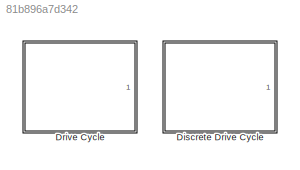
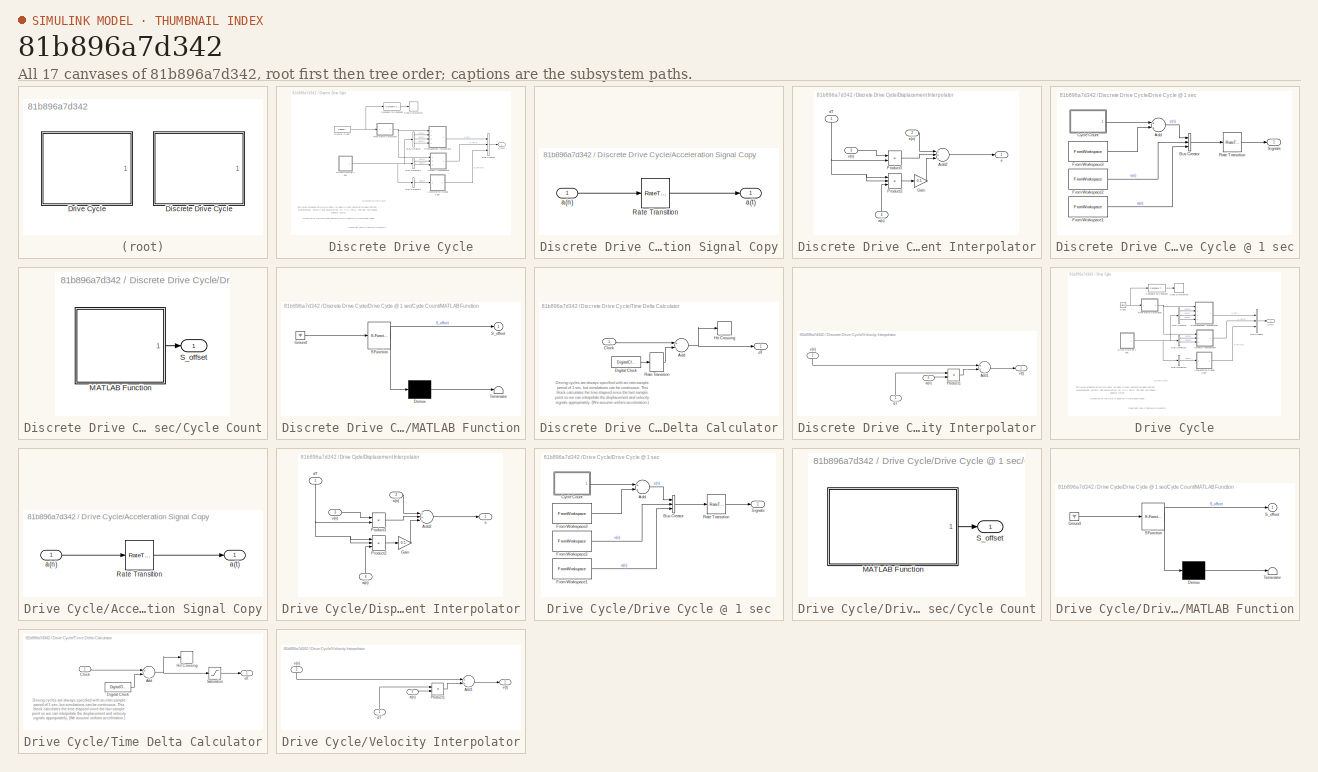
[diagram: thumbnail index - all 17 canvases of the model, root first then tree order]
MODEL slx_81b896a7d342
KIND library
CONFIG AbsTol = auto
CONFIG EnableMultiTasking = on
CONFIG FixedStep = auto
CONFIG MaxStep = auto
CONFIG MinStep = auto
CONFIG RelTol = 1e-3
CONFIG SampleTimeConstraint = Unconstrained
CONFIG Solver = ode45
CONFIG SolverName = ode45
CONFIG StartTime = 0.0
CONFIG StopTime = 10.0
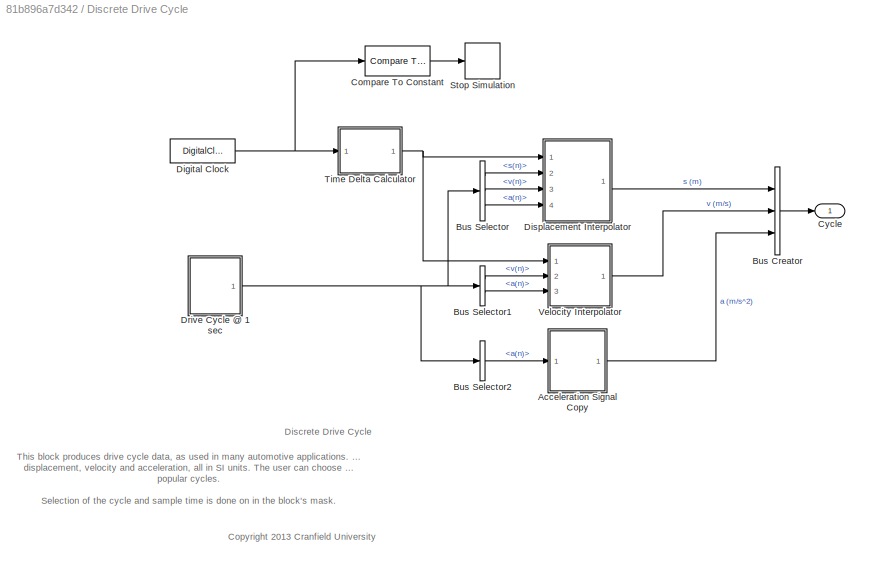
BLOCK [SubSystem] Discrete Drive Cycle
  Ports = [0, 1]
  RequestExecContextInheritance = off
BLOCK [SubSystem] Discrete Drive Cycle/Acceleration Signal Copy
  Ports = [1, 1]
  RequestExecContextInheritance = off
BLOCK [RateTransition] Discrete Drive Cycle/Acceleration Signal Copy/Rate Transition
  Integrity = off
BLOCK [Inport] Discrete Drive Cycle/Acceleration Signal Copy/a(n)
  IconDisplay = Port number
BLOCK [Outport] Discrete Drive Cycle/Acceleration Signal Copy/a(t)
  IconDisplay = Port number
BLOCK [BusCreator] Discrete Drive Cycle/Bus Creator
  DisplayOption = bar
  InheritFromInputs = on
  Inputs = 3
  Ports = [3, 1]
BLOCK [BusSelector] Discrete Drive Cycle/Bus Selector
  OutputAsBus = off
  OutputSignals = s(n),v(n),a(n)
  Ports = [1, 3]
BLOCK [BusSelector] Discrete Drive Cycle/Bus Selector1
  OutputAsBus = off
  OutputSignals = v(n),a(n)
  Ports = [1, 2]
BLOCK [BusSelector] Discrete Drive Cycle/Bus Selector2
  OutputAsBus = off
  OutputSignals = a(n)
  Ports = [1, 1]
BLOCK [Reference] Discrete Drive Cycle/Compare To Constant  REF=simulink/Logic and Bit
Operations/Compare
To Constant
  Ports = [1, 1]
  SourceBlock = simulink/Logic and Bit\nOperations/Compare\nTo Constant
  SourceProductBaseCode = SL
  SourceProductName = Simulink
  SourceType = Compare To Constant
BLOCK [Outport] Discrete Drive Cycle/Cycle
  IconDisplay = Port number
  SampleTime = SampleTime
BLOCK [DigitalClock] Discrete Drive Cycle/Digital Clock
  SampleTime = SampleTime
BLOCK [SubSystem] Discrete Drive Cycle/Displacement Interpolator
  Ports = [4, 1]
  RequestExecContextInheritance = off
BLOCK [Sum] Discrete Drive Cycle/Displacement Interpolator/Add2
  InputSameDT = off
  Inputs = +++
  OutDataTypeStr = Inherit: Inherit via internal rule
  Ports = [3, 1]
  SaturateOnIntegerOverflow = off
BLOCK [Gain] Discrete Drive Cycle/Displacement Interpolator/Gain
  Gain = 0.5
  OutDataTypeStr = Inherit: Inherit via internal rule
  ParamDataTypeStr = Inherit: Inherit via internal rule
  SaturateOnIntegerOverflow = off
BLOCK [Product] Discrete Drive Cycle/Displacement Interpolator/Product2
  InputSameDT = off
  Inputs = 3
  OutDataTypeStr = Inherit: Inherit via internal rule
  Ports = [3, 1]
  SaturateOnIntegerOverflow = off
BLOCK [Product] Discrete Drive Cycle/Displacement Interpolator/Product3
  InputSameDT = off
  OutDataTypeStr = Inherit: Inherit via internal rule
  Ports = [2, 1]
  SaturateOnIntegerOverflow = off
BLOCK [Inport] Discrete Drive Cycle/Displacement Interpolator/a(n)
  IconDisplay = Port number
  Port = 4
BLOCK [Inport] Discrete Drive Cycle/Displacement Interpolator/dT
  IconDisplay = Port number
BLOCK [Outport] Discrete Drive Cycle/Displacement Interpolator/s
  IconDisplay = Port number
BLOCK [Inport] Discrete Drive Cycle/Displacement Interpolator/s(n)
  IconDisplay = Port number
  Port = 2
BLOCK [Inport] Discrete Drive Cycle/Displacement Interpolator/v(n)
  IconDisplay = Port number
  Port = 3
BLOCK [SubSystem] Discrete Drive Cycle/Drive Cycle @ 1 sec
  Ports = [0, 1]
  RequestExecContextInheritance = off
BLOCK [Sum] Discrete Drive Cycle/Drive Cycle @ 1 sec/Add
  InputSameDT = off
  OutDataTypeStr = Inherit: Inherit via internal rule
  Ports = [2, 1]
  SaturateOnIntegerOverflow = off
BLOCK [BusCreator] Discrete Drive Cycle/Drive Cycle @ 1 sec/Bus Creator
  DisplayOption = bar
  InheritFromInputs = on
  Inputs = 3
  Ports = [3, 1]
BLOCK [SubSystem] Discrete Drive Cycle/Drive Cycle @ 1 sec/Cycle Count
  Ports = [0, 1]
  RequestExecContextInheritance = off
BLOCK [SubSystem] Discrete Drive Cycle/Drive Cycle @ 1 sec/Cycle Count/MATLAB Function
  ErrorFcn = Stateflow.Translate.translate
  PermitHierarchicalResolution = ExplicitOnly
  Ports = [0, 1]
  RequestExecContextInheritance = off
  SFBlockType = MATLAB Function
  TreatAsAtomicUnit = on
BLOCK [Demux] Discrete Drive Cycle/Drive Cycle @ 1 sec/Cycle Count/MATLAB Function/ Demux 
  Outputs = 1
  Ports = [1, 1]
BLOCK [Ground] Discrete Drive Cycle/Drive Cycle @ 1 sec/Cycle Count/MATLAB Function/ Ground 
BLOCK [S-Function] Discrete Drive Cycle/Drive Cycle @ 1 sec/Cycle Count/MATLAB Function/ SFunction 
  EnableBusSupport = off
  FunctionName = sf_sfun
  Parameters = S_CYCLE,T_CYCLE
  PortCounts = [1 2]
  Ports = [1, 2]
  SFcnIsStateOwnerBlock = off
  SFunctionDeploymentMode = off
  Tag = Stateflow S-Function drivecyclelib 1
BLOCK [Terminator] Discrete Drive Cycle/Drive Cycle @ 1 sec/Cycle Count/MATLAB Function/ Terminator 
BLOCK [Outport] Discrete Drive Cycle/Drive Cycle @ 1 sec/Cycle Count/MATLAB Function/S_offset
  IconDisplay = Port number
BLOCK [Outport] Discrete Drive Cycle/Drive Cycle @ 1 sec/Cycle Count/S_offset
  IconDisplay = Port number
BLOCK [FromWorkspace] Discrete Drive Cycle/Drive Cycle @ 1 sec/From Workspace1
  Interpolate = off
  OutputAfterFinalValue = Cyclic repetition
  SampleTime = 1
  VariableName = Acc
  ZeroCross = on
BLOCK [FromWorkspace] Discrete Drive Cycle/Drive Cycle @ 1 sec/From Workspace2
  Interpolate = off
  OutputAfterFinalValue = Cyclic repetition
  SampleTime = 1
  VariableName = Vel
  ZeroCross = on
BLOCK [FromWorkspace] Discrete Drive Cycle/Drive Cycle @ 1 sec/From Workspace3
  Interpolate = off
  OutputAfterFinalValue = Cyclic repetition
  SampleTime = 1
  VariableName = Disp
  ZeroCross = on
BLOCK [RateTransition] Discrete Drive Cycle/Drive Cycle @ 1 sec/Rate Transition
  Integrity = off
  OutPortSampleTime = SampleTime
BLOCK [Outport] Discrete Drive Cycle/Drive Cycle @ 1 sec/Signals
  IconDisplay = Port number
  SampleTime = SampleTime
BLOCK [Stop] Discrete Drive Cycle/Stop Simulation
BLOCK [SubSystem] Discrete Drive Cycle/Time Delta Calculator
  Ports = [1, 1]
  RequestExecContextInheritance = off
BLOCK [Sum] Discrete Drive Cycle/Time Delta Calculator/Add
  InputSameDT = off
  Inputs = +-
  OutDataTypeStr = Inherit: Inherit via internal rule
  Ports = [2, 1]
  SaturateOnIntegerOverflow = off
BLOCK [Inport] Discrete Drive Cycle/Time Delta Calculator/Clock
  IconDisplay = Port number
BLOCK [DigitalClock] Discrete Drive Cycle/Time Delta Calculator/Digital Clock
BLOCK [HitCross] Discrete Drive Cycle/Time Delta Calculator/Hit  Crossing
  HitCrossingOffset = 0.5
  Ports = [1]
  ShowOutputPort = off
BLOCK [RateTransition] Discrete Drive Cycle/Time Delta Calculator/Rate Transition
  Deterministic = off
  Integrity = off
  OutPortSampleTime = SampleTime
BLOCK [Outport] Discrete Drive Cycle/Time Delta Calculator/dT
  IconDisplay = Port number
BLOCK [SubSystem] Discrete Drive Cycle/Velocity Interpolator
  Ports = [3, 1]
  RequestExecContextInheritance = off
BLOCK [Sum] Discrete Drive Cycle/Velocity Interpolator/Add1
  InputSameDT = off
  OutDataTypeStr = Inherit: Inherit via internal rule
  Ports = [2, 1]
  SaturateOnIntegerOverflow = off
BLOCK [Product] Discrete Drive Cycle/Velocity Interpolator/Product1
  InputSameDT = off
  OutDataTypeStr = Inherit: Inherit via internal rule
  Ports = [2, 1]
  SaturateOnIntegerOverflow = off
BLOCK [Inport] Discrete Drive Cycle/Velocity Interpolator/a(n)
  IconDisplay = Port number
  Port = 3
BLOCK [Inport] Discrete Drive Cycle/Velocity Interpolator/dT
  IconDisplay = Port number
BLOCK [Inport] Discrete Drive Cycle/Velocity Interpolator/v(n)
  IconDisplay = Port number
  Port = 2
BLOCK [Outport] Discrete Drive Cycle/Velocity Interpolator/v(t)
  IconDisplay = Port number
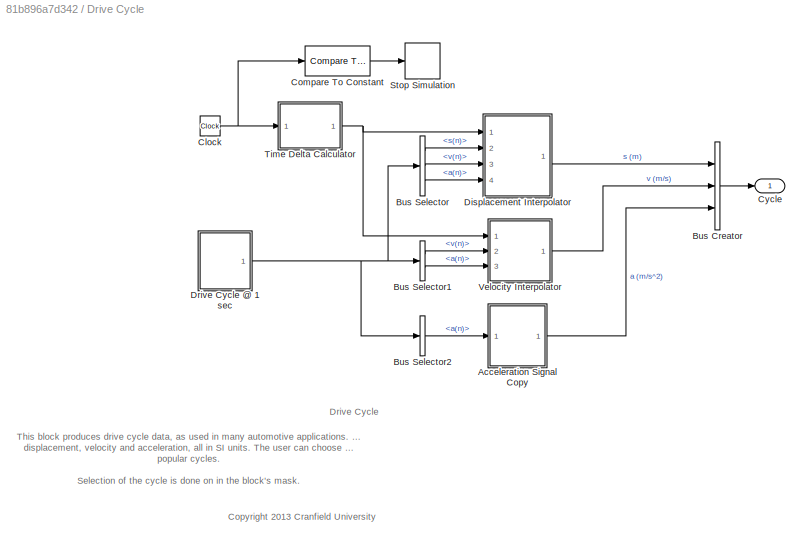
BLOCK [SubSystem] Drive Cycle
  Ports = [0, 1]
  RequestExecContextInheritance = off
BLOCK [SubSystem] Drive Cycle/Acceleration Signal Copy
  Ports = [1, 1]
  RequestExecContextInheritance = off
BLOCK [RateTransition] Drive Cycle/Acceleration Signal Copy/Rate Transition
  Integrity = off
BLOCK [Inport] Drive Cycle/Acceleration Signal Copy/a(n)
  IconDisplay = Port number
BLOCK [Outport] Drive Cycle/Acceleration Signal Copy/a(t)
  IconDisplay = Port number
BLOCK [BusCreator] Drive Cycle/Bus Creator
  DisplayOption = bar
  InheritFromInputs = on
  Inputs = 3
  Ports = [3, 1]
BLOCK [BusSelector] Drive Cycle/Bus Selector
  OutputAsBus = off
  OutputSignals = s(n),v(n),a(n)
  Ports = [1, 3]
BLOCK [BusSelector] Drive Cycle/Bus Selector1
  OutputAsBus = off
  OutputSignals = v(n),a(n)
  Ports = [1, 2]
BLOCK [BusSelector] Drive Cycle/Bus Selector2
  OutputAsBus = off
  OutputSignals = a(n)
  Ports = [1, 1]
BLOCK [Clock] Drive Cycle/Clock
  Decimation = 1
BLOCK [Reference] Drive Cycle/Compare To Constant  REF=simulink/Logic and Bit
Operations/Compare
To Constant
  Ports = [1, 1]
  SourceBlock = simulink/Logic and Bit\nOperations/Compare\nTo Constant
  SourceProductBaseCode = SL
  SourceProductName = Simulink
  SourceType = Compare To Constant
BLOCK [Outport] Drive Cycle/Cycle
  IconDisplay = Port number
BLOCK [SubSystem] Drive Cycle/Displacement Interpolator
  Ports = [4, 1]
  RequestExecContextInheritance = off
BLOCK [Sum] Drive Cycle/Displacement Interpolator/Add2
  InputSameDT = off
  Inputs = +++
  OutDataTypeStr = Inherit: Inherit via internal rule
  Ports = [3, 1]
  SaturateOnIntegerOverflow = off
BLOCK [Gain] Drive Cycle/Displacement Interpolator/Gain
  Gain = 0.5
  OutDataTypeStr = Inherit: Inherit via internal rule
  ParamDataTypeStr = Inherit: Inherit via internal rule
  SaturateOnIntegerOverflow = off
BLOCK [Product] Drive Cycle/Displacement Interpolator/Product2
  InputSameDT = off
  Inputs = 3
  OutDataTypeStr = Inherit: Inherit via internal rule
  Ports = [3, 1]
  SaturateOnIntegerOverflow = off
BLOCK [Product] Drive Cycle/Displacement Interpolator/Product3
  InputSameDT = off
  OutDataTypeStr = Inherit: Inherit via internal rule
  Ports = [2, 1]
  SaturateOnIntegerOverflow = off
BLOCK [Inport] Drive Cycle/Displacement Interpolator/a(n)
  IconDisplay = Port number
  Port = 4
BLOCK [Inport] Drive Cycle/Displacement Interpolator/dT
  IconDisplay = Port number
BLOCK [Outport] Drive Cycle/Displacement Interpolator/s
  IconDisplay = Port number
BLOCK [Inport] Drive Cycle/Displacement Interpolator/s(n)
  IconDisplay = Port number
  Port = 2
BLOCK [Inport] Drive Cycle/Displacement Interpolator/v(n)
  IconDisplay = Port number
  Port = 3
BLOCK [SubSystem] Drive Cycle/Drive Cycle @ 1 sec
  Ports = [0, 1]
  RequestExecContextInheritance = off
BLOCK [Sum] Drive Cycle/Drive Cycle @ 1 sec/Add
  InputSameDT = off
  OutDataTypeStr = Inherit: Inherit via internal rule
  Ports = [2, 1]
  SaturateOnIntegerOverflow = off
BLOCK [BusCreator] Drive Cycle/Drive Cycle @ 1 sec/Bus Creator
  DisplayOption = bar
  InheritFromInputs = on
  Inputs = 3
  Ports = [3, 1]
BLOCK [SubSystem] Drive Cycle/Drive Cycle @ 1 sec/Cycle Count
  Ports = [0, 1]
  RequestExecContextInheritance = off
BLOCK [SubSystem] Drive Cycle/Drive Cycle @ 1 sec/Cycle Count/MATLAB Function
  ErrorFcn = Stateflow.Translate.translate
  PermitHierarchicalResolution = ExplicitOnly
  Ports = [0, 1]
  RequestExecContextInheritance = off
  SFBlockType = MATLAB Function
  TreatAsAtomicUnit = on
BLOCK [Demux] Drive Cycle/Drive Cycle @ 1 sec/Cycle Count/MATLAB Function/ Demux 
  Outputs = 1
  Ports = [1, 1]
BLOCK [Ground] Drive Cycle/Drive Cycle @ 1 sec/Cycle Count/MATLAB Function/ Ground 
BLOCK [S-Function] Drive Cycle/Drive Cycle @ 1 sec/Cycle Count/MATLAB Function/ SFunction 
  EnableBusSupport = off
  FunctionName = sf_sfun
  Parameters = S_CYCLE,T_CYCLE
  PortCounts = [1 2]
  Ports = [1, 2]
  SFcnIsStateOwnerBlock = off
  SFunctionDeploymentMode = off
  Tag = Stateflow S-Function drivecyclelib 2
BLOCK [Terminator] Drive Cycle/Drive Cycle @ 1 sec/Cycle Count/MATLAB Function/ Terminator 
BLOCK [Outport] Drive Cycle/Drive Cycle @ 1 sec/Cycle Count/MATLAB Function/S_offset
  IconDisplay = Port number
BLOCK [Outport] Drive Cycle/Drive Cycle @ 1 sec/Cycle Count/S_offset
  IconDisplay = Port number
BLOCK [FromWorkspace] Drive Cycle/Drive Cycle @ 1 sec/From Workspace1
  Interpolate = off
  OutputAfterFinalValue = Cyclic repetition
  SampleTime = 1
  VariableName = Acc
  ZeroCross = on
BLOCK [FromWorkspace] Drive Cycle/Drive Cycle @ 1 sec/From Workspace2
  Interpolate = off
  OutputAfterFinalValue = Cyclic repetition
  SampleTime = 1
  VariableName = Vel
  ZeroCross = on
BLOCK [FromWorkspace] Drive Cycle/Drive Cycle @ 1 sec/From Workspace3
  Interpolate = off
  OutputAfterFinalValue = Cyclic repetition
  SampleTime = 1
  VariableName = Disp
  ZeroCross = on
BLOCK [RateTransition] Drive Cycle/Drive Cycle @ 1 sec/Rate Transition
  Integrity = off
  OutPortSampleTime = SampleTime
  OutPortSampleTimeOpt = Inherit
BLOCK [Outport] Drive Cycle/Drive Cycle @ 1 sec/Signals
  IconDisplay = Port number
  SampleTime = 0
BLOCK [Stop] Drive Cycle/Stop Simulation
BLOCK [SubSystem] Drive Cycle/Time Delta Calculator
  Ports = [1, 1]
  RequestExecContextInheritance = off
BLOCK [Sum] Drive Cycle/Time Delta Calculator/Add
  InputSameDT = off
  Inputs = +-
  OutDataTypeStr = Inherit: Inherit via internal rule
  Ports = [2, 1]
  SaturateOnIntegerOverflow = off
BLOCK [Inport] Drive Cycle/Time Delta Calculator/Clock
  IconDisplay = Port number
BLOCK [DigitalClock] Drive Cycle/Time Delta Calculator/Digital Clock
BLOCK [HitCross] Drive Cycle/Time Delta Calculator/Hit  Crossing
  HitCrossingDirection = falling
  HitCrossingOffset = 0.5
  Ports = [1]
  ShowOutputPort = off
BLOCK [Saturate] Drive Cycle/Time Delta Calculator/Saturation
  InputPortMap = u0
  LowerLimit = 0
  Ports = [1, 1]
  UpperLimit = 1
  ZeroCross = off
BLOCK [Outport] Drive Cycle/Time Delta Calculator/dT
  IconDisplay = Port number
BLOCK [SubSystem] Drive Cycle/Velocity Interpolator
  Ports = [3, 1]
  RequestExecContextInheritance = off
BLOCK [Sum] Drive Cycle/Velocity Interpolator/Add1
  InputSameDT = off
  OutDataTypeStr = Inherit: Inherit via internal rule
  Ports = [2, 1]
  SaturateOnIntegerOverflow = off
BLOCK [Product] Drive Cycle/Velocity Interpolator/Product1
  InputSameDT = off
  OutDataTypeStr = Inherit: Inherit via internal rule
  Ports = [2, 1]
  SaturateOnIntegerOverflow = off
BLOCK [Inport] Drive Cycle/Velocity Interpolator/a(n)
  IconDisplay = Port number
  Port = 3
BLOCK [Inport] Drive Cycle/Velocity Interpolator/dT
  IconDisplay = Port number
BLOCK [Inport] Drive Cycle/Velocity Interpolator/v(n)
  IconDisplay = Port number
  Port = 2
BLOCK [Outport] Drive Cycle/Velocity Interpolator/v(t)
  IconDisplay = Port number
ANNOTATION Discrete Drive Cycle: <copyright redacted>
ANNOTATION Discrete Drive Cycle: Discrete Drive Cycle
ANNOTATION Discrete Drive Cycle: This block produces drive cycle data, as used in many automotive applications. It outputs displacement, velocity and acceleration, all in SI units. The user can choose from a list of popular cycles. Selection of the cycle and sample time is done on in the block's mask.
ANNOTATION Discrete Drive Cycle/Time Delta Calculator: Driving cycles are always specified with an inter-sample period of 1 sec, but simulations can be continuous. This block calculates the time elapsed since the last sample point so we can interpolate the displacement and velocity signals appropriately. (We assume uniform acceleration.)
ANNOTATION Drive Cycle: <copyright redacted>
ANNOTATION Drive Cycle: Drive Cycle
ANNOTATION Drive Cycle: This block produces drive cycle data, as used in many automotive applications. It outputs displacement, velocity and acceleration, all in SI units. The user can choose from a list of popular cycles. Selection of the cycle is done on in the block's mask.
ANNOTATION Drive Cycle/Time Delta Calculator: Driving cycles are always specified with an inter-sample period of 1 sec, but simulations can be continuous. This block calculates the time elapsed since the last sample point so we can interpolate the displacement and velocity signals appropriately. (We assume uniform acceleration.)
LINE Discrete Drive Cycle/Acceleration Signal Copy/Rate Transition:1 -> Discrete Drive Cycle/Acceleration Signal Copy/a(t):1
LINE Discrete Drive Cycle/Acceleration Signal Copy/a(n):1 -> Discrete Drive Cycle/Acceleration Signal Copy/Rate Transition:1
LINE Discrete Drive Cycle/Acceleration Signal Copy:1 -> Discrete Drive Cycle/Bus Creator:3
LINE Discrete Drive Cycle/Bus Creator:1 -> Discrete Drive Cycle/Cycle:1
LINE Discrete Drive Cycle/Bus Selector1:1 -> Discrete Drive Cycle/Velocity Interpolator:2
LINE Discrete Drive Cycle/Bus Selector1:2 -> Discrete Drive Cycle/Velocity Interpolator:3
LINE Discrete Drive Cycle/Bus Selector2:1 -> Discrete Drive Cycle/Acceleration Signal Copy:1
LINE Discrete Drive Cycle/Bus Selector:1 -> Discrete Drive Cycle/Displacement Interpolator:2
LINE Discrete Drive Cycle/Bus Selector:2 -> Discrete Drive Cycle/Displacement Interpolator:3
LINE Discrete Drive Cycle/Bus Selector:3 -> Discrete Drive Cycle/Displacement Interpolator:4
LINE Discrete Drive Cycle/Compare To Constant:1 -> Discrete Drive Cycle/Stop Simulation:1
NET Discrete Drive Cycle/Digital Clock:1 -> Discrete Drive Cycle/Compare To Constant:1, Discrete Drive Cycle/Time Delta Calculator:1
LINE Discrete Drive Cycle/Displacement Interpolator/Add2:1 -> Discrete Drive Cycle/Displacement Interpolator/s:1
LINE Discrete Drive Cycle/Displacement Interpolator/Gain:1 -> Discrete Drive Cycle/Displacement Interpolator/Add2:3
LINE Discrete Drive Cycle/Displacement Interpolator/Product2:1 -> Discrete Drive Cycle/Displacement Interpolator/Gain:1
LINE Discrete Drive Cycle/Displacement Interpolator/Product3:1 -> Discrete Drive Cycle/Displacement Interpolator/Add2:2
LINE Discrete Drive Cycle/Displacement Interpolator/a(n):1 -> Discrete Drive Cycle/Displacement Interpolator/Product2:3
NET Discrete Drive Cycle/Displacement Interpolator/dT:1 -> Discrete Drive Cycle/Displacement Interpolator/Product2:1, Discrete Drive Cycle/Displacement Interpolator/Product2:2, Discrete Drive Cycle/Displacement Interpolator/Product3:2
LINE Discrete Drive Cycle/Displacement Interpolator/s(n):1 -> Discrete Drive Cycle/Displacement Interpolator/Add2:1
LINE Discrete Drive Cycle/Displacement Interpolator/v(n):1 -> Discrete Drive Cycle/Displacement Interpolator/Product3:1
LINE Discrete Drive Cycle/Displacement Interpolator:1 -> Discrete Drive Cycle/Bus Creator:1
LINE Discrete Drive Cycle/Drive Cycle @ 1 sec/Add:1 -> Discrete Drive Cycle/Drive Cycle @ 1 sec/Bus Creator:1
LINE Discrete Drive Cycle/Drive Cycle @ 1 sec/Bus Creator:1 -> Discrete Drive Cycle/Drive Cycle @ 1 sec/Rate Transition:1
LINE Discrete Drive Cycle/Drive Cycle @ 1 sec/Cycle Count/MATLAB Function:1 -> Discrete Drive Cycle/Drive Cycle @ 1 sec/Cycle Count/S_offset:1
LINE Discrete Drive Cycle/Drive Cycle @ 1 sec/Cycle Count:1 -> Discrete Drive Cycle/Drive Cycle @ 1 sec/Add:1
LINE Discrete Drive Cycle/Drive Cycle @ 1 sec/From Workspace1:1 -> Discrete Drive Cycle/Drive Cycle @ 1 sec/Bus Creator:3
LINE Discrete Drive Cycle/Drive Cycle @ 1 sec/From Workspace2:1 -> Discrete Drive Cycle/Drive Cycle @ 1 sec/Bus Creator:2
LINE Discrete Drive Cycle/Drive Cycle @ 1 sec/From Workspace3:1 -> Discrete Drive Cycle/Drive Cycle @ 1 sec/Add:2
LINE Discrete Drive Cycle/Drive Cycle @ 1 sec/Rate Transition:1 -> Discrete Drive Cycle/Drive Cycle @ 1 sec/Signals:1
NET Discrete Drive Cycle/Drive Cycle @ 1 sec:1 -> Discrete Drive Cycle/Bus Selector1:1, Discrete Drive Cycle/Bus Selector2:1, Discrete Drive Cycle/Bus Selector:1
NET Discrete Drive Cycle/Time Delta Calculator/Add:1 -> Discrete Drive Cycle/Time Delta Calculator/Hit  Crossing:1, Discrete Drive Cycle/Time Delta Calculator/dT:1
LINE Discrete Drive Cycle/Time Delta Calculator/Clock:1 -> Discrete Drive Cycle/Time Delta Calculator/Add:1
LINE Discrete Drive Cycle/Time Delta Calculator/Digital Clock:1 -> Discrete Drive Cycle/Time Delta Calculator/Rate Transition:1
LINE Discrete Drive Cycle/Time Delta Calculator/Rate Transition:1 -> Discrete Drive Cycle/Time Delta Calculator/Add:2
NET Discrete Drive Cycle/Time Delta Calculator:1 -> Discrete Drive Cycle/Displacement Interpolator:1, Discrete Drive Cycle/Velocity Interpolator:1
LINE Discrete Drive Cycle/Velocity Interpolator/Add1:1 -> Discrete Drive Cycle/Velocity Interpolator/v(t):1
LINE Discrete Drive Cycle/Velocity Interpolator/Product1:1 -> Discrete Drive Cycle/Velocity Interpolator/Add1:2
LINE Discrete Drive Cycle/Velocity Interpolator/a(n):1 -> Discrete Drive Cycle/Velocity Interpolator/Product1:2
LINE Discrete Drive Cycle/Velocity Interpolator/dT:1 -> Discrete Drive Cycle/Velocity Interpolator/Product1:1
LINE Discrete Drive Cycle/Velocity Interpolator/v(n):1 -> Discrete Drive Cycle/Velocity Interpolator/Add1:1
LINE Discrete Drive Cycle/Velocity Interpolator:1 -> Discrete Drive Cycle/Bus Creator:2
LINE Drive Cycle/Acceleration Signal Copy/Rate Transition:1 -> Drive Cycle/Acceleration Signal Copy/a(t):1
LINE Drive Cycle/Acceleration Signal Copy/a(n):1 -> Drive Cycle/Acceleration Signal Copy/Rate Transition:1
LINE Drive Cycle/Acceleration Signal Copy:1 -> Drive Cycle/Bus Creator:3
LINE Drive Cycle/Bus Creator:1 -> Drive Cycle/Cycle:1
LINE Drive Cycle/Bus Selector1:1 -> Drive Cycle/Velocity Interpolator:2
LINE Drive Cycle/Bus Selector1:2 -> Drive Cycle/Velocity Interpolator:3
LINE Drive Cycle/Bus Selector2:1 -> Drive Cycle/Acceleration Signal Copy:1
LINE Drive Cycle/Bus Selector:1 -> Drive Cycle/Displacement Interpolator:2
LINE Drive Cycle/Bus Selector:2 -> Drive Cycle/Displacement Interpolator:3
LINE Drive Cycle/Bus Selector:3 -> Drive Cycle/Displacement Interpolator:4
NET Drive Cycle/Clock:1 -> Drive Cycle/Compare To Constant:1, Drive Cycle/Time Delta Calculator:1
LINE Drive Cycle/Compare To Constant:1 -> Drive Cycle/Stop Simulation:1
LINE Drive Cycle/Displacement Interpolator/Add2:1 -> Drive Cycle/Displacement Interpolator/s:1
LINE Drive Cycle/Displacement Interpolator/Gain:1 -> Drive Cycle/Displacement Interpolator/Add2:3
LINE Drive Cycle/Displacement Interpolator/Product2:1 -> Drive Cycle/Displacement Interpolator/Gain:1
LINE Drive Cycle/Displacement Interpolator/Product3:1 -> Drive Cycle/Displacement Interpolator/Add2:2
LINE Drive Cycle/Displacement Interpolator/a(n):1 -> Drive Cycle/Displacement Interpolator/Product2:3
NET Drive Cycle/Displacement Interpolator/dT:1 -> Drive Cycle/Displacement Interpolator/Product2:1, Drive Cycle/Displacement Interpolator/Product2:2, Drive Cycle/Displacement Interpolator/Product3:2
LINE Drive Cycle/Displacement Interpolator/s(n):1 -> Drive Cycle/Displacement Interpolator/Add2:1
LINE Drive Cycle/Displacement Interpolator/v(n):1 -> Drive Cycle/Displacement Interpolator/Product3:1
LINE Drive Cycle/Displacement Interpolator:1 -> Drive Cycle/Bus Creator:1
LINE Drive Cycle/Drive Cycle @ 1 sec/Add:1 -> Drive Cycle/Drive Cycle @ 1 sec/Bus Creator:1
LINE Drive Cycle/Drive Cycle @ 1 sec/Bus Creator:1 -> Drive Cycle/Drive Cycle @ 1 sec/Rate Transition:1
LINE Drive Cycle/Drive Cycle @ 1 sec/Cycle Count/MATLAB Function:1 -> Drive Cycle/Drive Cycle @ 1 sec/Cycle Count/S_offset:1
LINE Drive Cycle/Drive Cycle @ 1 sec/Cycle Count:1 -> Drive Cycle/Drive Cycle @ 1 sec/Add:1
LINE Drive Cycle/Drive Cycle @ 1 sec/From Workspace1:1 -> Drive Cycle/Drive Cycle @ 1 sec/Bus Creator:3
LINE Drive Cycle/Drive Cycle @ 1 sec/From Workspace2:1 -> Drive Cycle/Drive Cycle @ 1 sec/Bus Creator:2
LINE Drive Cycle/Drive Cycle @ 1 sec/From Workspace3:1 -> Drive Cycle/Drive Cycle @ 1 sec/Add:2
LINE Drive Cycle/Drive Cycle @ 1 sec/Rate Transition:1 -> Drive Cycle/Drive Cycle @ 1 sec/Signals:1
NET Drive Cycle/Drive Cycle @ 1 sec:1 -> Drive Cycle/Bus Selector1:1, Drive Cycle/Bus Selector2:1, Drive Cycle/Bus Selector:1
NET Drive Cycle/Time Delta Calculator/Add:1 -> Drive Cycle/Time Delta Calculator/Hit  Crossing:1, Drive Cycle/Time Delta Calculator/Saturation:1
LINE Drive Cycle/Time Delta Calculator/Clock:1 -> Drive Cycle/Time Delta Calculator/Add:1
LINE Drive Cycle/Time Delta Calculator/Digital Clock:1 -> Drive Cycle/Time Delta Calculator/Add:2
LINE Drive Cycle/Time Delta Calculator/Saturation:1 -> Drive Cycle/Time Delta Calculator/dT:1
NET Drive Cycle/Time Delta Calculator:1 -> Drive Cycle/Displacement Interpolator:1, Drive Cycle/Velocity Interpolator:1
LINE Drive Cycle/Velocity Interpolator/Add1:1 -> Drive Cycle/Velocity Interpolator/v(t):1
LINE Drive Cycle/Velocity Interpolator/Product1:1 -> Drive Cycle/Velocity Interpolator/Add1:2
LINE Drive Cycle/Velocity Interpolator/a(n):1 -> Drive Cycle/Velocity Interpolator/Product1:2
LINE Drive Cycle/Velocity Interpolator/dT:1 -> Drive Cycle/Velocity Interpolator/Product1:1
LINE Drive Cycle/Velocity Interpolator/v(n):1 -> Drive Cycle/Velocity Interpolator/Add1:1
LINE Drive Cycle/Velocity Interpolator:1 -> Drive Cycle/Bus Creator:2
note: NET lines group one-source signal fan-out (src -> all destinations, sorted); 1:1 wires keep LINE
CHART Discrete Drive Cycle/Drive Cycle @ 1 sec/Cycle Count/MATLAB Function states=1 transitions=1
  STATE_LABEL 'eML_blk_kernel()'
  STATE_LABEL 'SCRIPT:\nfunction S_offset = calcDispOffset(T_CYCLE, S_CYCLE)\n%#codegen\n\npersistent sampleCount cycleCount T_CYCLE_uint32;\nif isempty(cycleCount)    \n    sampleCount = uint32(0);\n    cycleCount  = uint32(0);\n    T_CYCLE_uint32 = uint32(T_CYCLE);\nend\n\nwhile sampleCount >= T_CYCLE_uint32;\n    cycleCount = cycleCount + uint32(1);\n    sampleCount = sampleCount - T_CYCLE_uint32;\nend\n\nS_offset = S_CYCLE ...<+65ch>'
CHART Drive Cycle/Drive Cycle @ 1 sec/Cycle Count/MATLAB Function states=1 transitions=1
  STATE_LABEL 'eML_blk_kernel()'
  STATE_LABEL 'SCRIPT:\nfunction S_offset = calcDispOffset(T_CYCLE, S_CYCLE)\n%#codegen\n\npersistent sampleCount cycleCount T_CYCLE_uint32;\nif isempty(cycleCount)    \n    sampleCount = uint32(0);\n    cycleCount  = uint32(0);\n    T_CYCLE_uint32 = uint32(T_CYCLE);\nend\n\nwhile sampleCount >= T_CYCLE_uint32;\n    cycleCount = cycleCount + uint32(1);\n    sampleCount = sampleCount - T_CYCLE_uint32;\nend\n\nS_offset = S_CYCLE ...<+65ch>'
